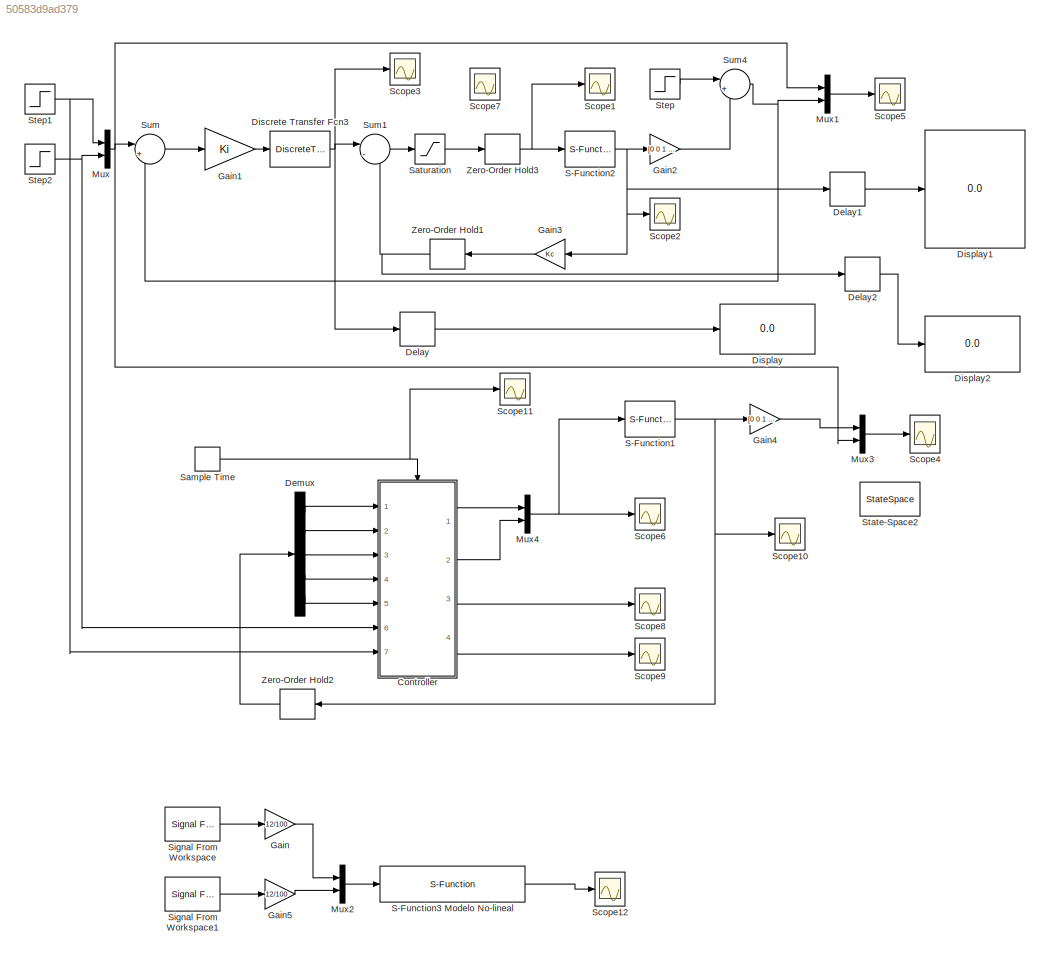
MODEL slx_50583d9ad379
KIND model
CONFIG AbsTol = auto
CONFIG FixedStep = 6e-3
CONFIG MaxStep = auto
CONFIG MinStep = auto
CONFIG RelTol = 1e-3
CONFIG SampleTimeConstraint = Unconstrained
CONFIG Solver = ode45
CONFIG SolverMode = Auto
CONFIG SolverName = ode45
CONFIG StartTime = 0.0
CONFIG StopTime = 30
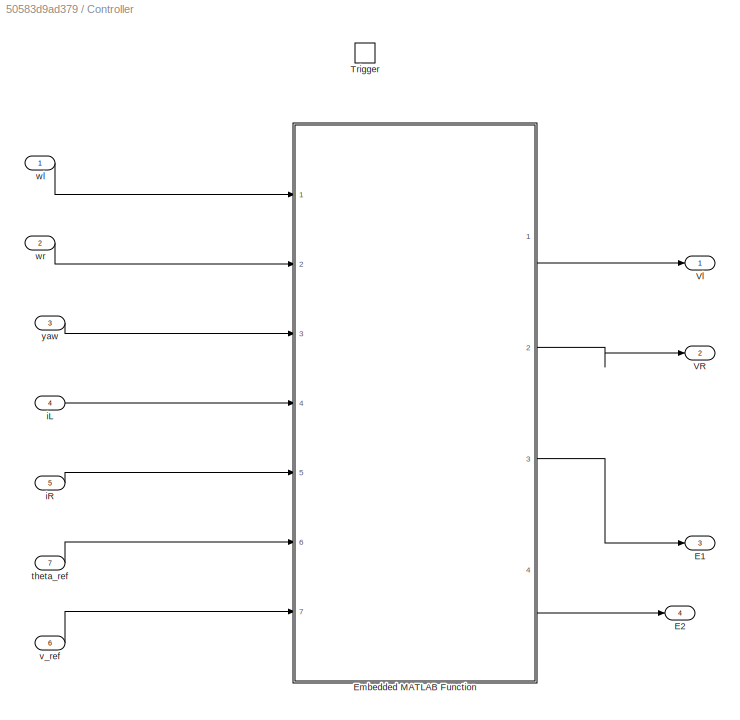
BLOCK [SubSystem] Controller
  Ports = [7, 4, 0, 1]
  RequestExecContextInheritance = off
BLOCK [Outport] Controller/E1
  IconDisplay = Port number
  Port = 3
BLOCK [Outport] Controller/E2
  IconDisplay = Port number
  Port = 4
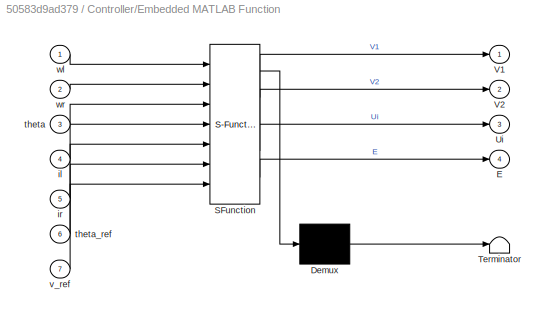
BLOCK [SubSystem] Controller/Embedded MATLAB Function
  ErrorFcn = Stateflow.Translate.translate
  PermitHierarchicalResolution = ExplicitOnly
  Ports = [7, 4]
  RequestExecContextInheritance = off
  SFBlockType = MATLAB Function
  TreatAsAtomicUnit = on
BLOCK [Demux] Controller/Embedded MATLAB Function/ Demux 
  Outputs = 1
  Ports = [1, 1]
BLOCK [S-Function] Controller/Embedded MATLAB Function/ SFunction 
  EnableBusSupport = on
  FunctionName = sf_sfun
  PortCounts = [7 5]
  Ports = [7, 5]
  Tag = Stateflow S-Function lqr_nlin 2
BLOCK [Terminator] Controller/Embedded MATLAB Function/ Terminator 
BLOCK [Outport] Controller/Embedded MATLAB Function/E
  IconDisplay = Port number
  Port = 4
BLOCK [Outport] Controller/Embedded MATLAB Function/Ui
  IconDisplay = Port number
  Port = 3
BLOCK [Outport] Controller/Embedded MATLAB Function/V1
  IconDisplay = Port number
BLOCK [Outport] Controller/Embedded MATLAB Function/V2
  IconDisplay = Port number
  Port = 2
BLOCK [Inport] Controller/Embedded MATLAB Function/il
  IconDisplay = Port number
  Port = 4
BLOCK [Inport] Controller/Embedded MATLAB Function/ir
  IconDisplay = Port number
  Port = 5
BLOCK [Inport] Controller/Embedded MATLAB Function/theta
  IconDisplay = Port number
  Port = 3
BLOCK [Inport] Controller/Embedded MATLAB Function/theta_ref
  IconDisplay = Port number
  Port = 6
BLOCK [Inport] Controller/Embedded MATLAB Function/v_ref
  IconDisplay = Port number
  Port = 7
BLOCK [Inport] Controller/Embedded MATLAB Function/wl
  IconDisplay = Port number
BLOCK [Inport] Controller/Embedded MATLAB Function/wr
  IconDisplay = Port number
  Port = 2
BLOCK [TriggerPort] Controller/Trigger
  Ports = []
  StatesWhenEnabling = held
BLOCK [Outport] Controller/VR
  IconDisplay = Port number
  Port = 2
BLOCK [Outport] Controller/Vl
  IconDisplay = Port number
BLOCK [Inport] Controller/iL
  IconDisplay = Port number
  Port = 4
BLOCK [Inport] Controller/iR
  IconDisplay = Port number
  Port = 5
BLOCK [Inport] Controller/theta_ref
  IconDisplay = Port number
  Port = 7
BLOCK [Inport] Controller/v_ref
  IconDisplay = Port number
  Port = 6
BLOCK [Inport] Controller/wl
  IconDisplay = Port number
BLOCK [Inport] Controller/wr
  IconDisplay = Port number
  Port = 2
BLOCK [Inport] Controller/yaw
  IconDisplay = Port number
  Port = 3
BLOCK [Delay] Delay
  DelayLength = 1
  InputPortMap = u0
  Ports = [1, 1]
  SampleTime = Ts
BLOCK [Delay] Delay1
  DelayLength = 1
  InputPortMap = u0
  Ports = [1, 1]
  SampleTime = Ts
BLOCK [Delay] Delay2
  DelayLength = 1
  InputPortMap = u0
  Ports = [1, 1]
  SampleTime = Ts
BLOCK [Demux] Demux
  DisplayOption = bar
  Outputs = 5
  Ports = [1, 5]
BLOCK [DiscreteTransferFcn] Discrete Transfer Fcn3
  Denominator = [1 -1]
  InputPortMap = u0
  Ports = [1, 1]
  SampleTime = Ts
BLOCK [Display] Display
  Decimation = 1
  Ports = [1]
BLOCK [Display] Display1
  Decimation = 1
  Ports = [1]
BLOCK [Display] Display2
  Decimation = 1
  Ports = [1]
BLOCK [Gain] Gain
  Gain = 12/100
  OutDataTypeStr = Inherit: Inherit via internal rule
  ParamDataTypeStr = Inherit: Inherit via internal rule
  SaturateOnIntegerOverflow = off
BLOCK [Gain] Gain1
  Gain = Ki
  Multiplication = Matrix(K*u) (u vector)
  OutDataTypeStr = Inherit: Inherit via internal rule
  ParamDataTypeStr = Inherit: Inherit via internal rule
  SaturateOnIntegerOverflow = off
BLOCK [Gain] Gain2
  Gain = [0 0 1 0 0;0.5*0.2 0.5*0.2 0 0 0];
  Multiplication = Matrix(K*u) (u vector)
  OutDataTypeStr = Inherit: Inherit via internal rule
  ParamDataTypeStr = Inherit: Inherit via internal rule
  SampleTime = Ts
  SaturateOnIntegerOverflow = off
BLOCK [Gain] Gain3
  Gain = Kc
  Multiplication = Matrix(K*u) (u vector)
  OutDataTypeStr = Inherit: Inherit via internal rule
  ParamDataTypeStr = Inherit: Inherit via internal rule
  SaturateOnIntegerOverflow = off
BLOCK [Gain] Gain4
  Gain = [0 0 1 0 0;0.5*0.2 0.5*0.2 0 0 0];
  Multiplication = Matrix(K*u) (u vector)
  OutDataTypeStr = Inherit: Inherit via internal rule
  ParamDataTypeStr = Inherit: Inherit via internal rule
  SampleTime = Ts
  SaturateOnIntegerOverflow = off
BLOCK [Gain] Gain5
  Gain = 12/100
  OutDataTypeStr = Inherit: Inherit via internal rule
  ParamDataTypeStr = Inherit: Inherit via internal rule
  SaturateOnIntegerOverflow = off
BLOCK [Mux] Mux
  DisplayOption = bar
  Inputs = 2
  Ports = [2, 1]
BLOCK [Mux] Mux1
  DisplayOption = bar
  Inputs = 2
  Ports = [2, 1]
BLOCK [Mux] Mux2
  DisplayOption = bar
  Inputs = 2
  Ports = [2, 1]
BLOCK [Mux] Mux3
  DisplayOption = bar
  Inputs = 2
  Ports = [2, 1]
BLOCK [Mux] Mux4
  DisplayOption = bar
  Inputs = 2
  Ports = [2, 1]
BLOCK [S-Function] S-Function1
  FunctionName = S_Rover_skid_steer
  Ports = [1, 1]
BLOCK [S-Function] S-Function2
  FunctionName = S_Rover_skid_steer
  Ports = [1, 1]
BLOCK [S-Function] S-Function3 Modelo No-lineal
  FunctionName = S_Rover_skid_steer
  Ports = [1, 1]
BLOCK [DiscretePulseGenerator] Sample Time
  Period = Ts
  Ports = [0, 1]
  PulseType = Time based
  PulseWidth = 10
  SampleTime = 1e-3
BLOCK [Saturate] Saturation
  InputPortMap = u0
  LowerLimit = -100
  Ports = [1, 1]
  UpperLimit = 100
BLOCK [Scope] Scope1
  DataFormat = StructureWithTime
  Floating = off
  NumInputPorts = 1
  Ports = [1]
  YMax = 119.24922
  YMin = -73.24295
BLOCK [Scope] Scope10
  DataFormat = StructureWithTime
  Floating = off
  NumInputPorts = 1
  Ports = [1]
  SaveName = ScopeData2
  YMax = 46.62882
  YMin = -57.1366
BLOCK [Scope] Scope11
  DataFormat = StructureWithTime
  Floating = off
  NumInputPorts = 1
  Ports = [1]
  SaveName = ScopeData3
  YMax = 1.00000
  YMin = -1.00000
BLOCK [Scope] Scope12
  DataFormat = StructureWithTime
  Floating = off
  NumInputPorts = 1
  Ports = [1]
  SaveName = ScopeData7
  YMax = 0.7
  YMin = -0.7
BLOCK [Scope] Scope2
  DataFormat = StructureWithTime
  Floating = off
  NumInputPorts = 1
  Ports = [1]
  SaveName = ScopeData1
  YMax = 24.9659
  YMin = -32.95456
BLOCK [Scope] Scope3
  DataFormat = StructureWithTime
  Floating = off
  NumInputPorts = 1
  Ports = [1]
  SaveName = ScopeData2
  YMax = 63.52669
  YMin = -50.1371
BLOCK [Scope] Scope4
  DataFormat = StructureWithTime
  Floating = off
  MaxDataPoints = 500000
  NumInputPorts = 1
  Ports = [1]
  SaveName = ScopeData3
  YMax = 2.25
  YMin = -0.75
BLOCK [Scope] Scope5
  DataFormat = StructureWithTime
  Floating = off
  MaxDataPoints = 500000
  NumInputPorts = 1
  Ports = [1]
  SaveName = ScopeData5
  YMax = 2.25
  YMin = -0.25
BLOCK [Scope] Scope6
  DataFormat = StructureWithTime
  Floating = off
  MaxDataPoints = 500000
  NumInputPorts = 1
  Ports = [1]
  SaveName = ScopeData4
  YMax = 50
  YMin = -70
BLOCK [Scope] Scope7
  DataFormat = StructureWithTime
  Floating = off
  NumInputPorts = 1
  Ports = [1]
  SaveName = ScopeData5
  YMax = 857.62638
  YMin = -874.60938
BLOCK [Scope] Scope8
  DataFormat = StructureWithTime
  Floating = off
  NumInputPorts = 1
  Ports = [1]
  SaveName = ScopeData6
  YMax = 379.73798
  YMin = -461.30149
BLOCK [Scope] Scope9
  DataFormat = StructureWithTime
  Floating = off
  NumInputPorts = 1
  Ports = [1]
  SaveName = ScopeData1
  YMax = 5.27898
  YMin = -2.0067
BLOCK [Reference] Signal From Workspace  REF=dspsrcs4/Signal From
Workspace
  OutputAfterFinalValue = Setting to zero
  Ports = [0, 1]
  SourceBlock = dspsrcs4/Signal From\nWorkspace
  SourceType = Signal From Workspace
  Ts = Ts
  X = U_Iz
  ignoreOrWarnInputAndFrameLengths = off
  nsamps = 1
BLOCK [Reference] Signal From Workspace1  REF=dspsrcs4/Signal From
Workspace
  OutputAfterFinalValue = Setting to zero
  Ports = [0, 1]
  SourceBlock = dspsrcs4/Signal From\nWorkspace
  SourceType = Signal From Workspace
  Ts = Ts
  X = U_Der
  ignoreOrWarnInputAndFrameLengths = off
  nsamps = 1
BLOCK [StateSpace] State-Space2
  A = A
  B = B
  C = eye(5)
  ContinuousStateAttributes = 'position'
  D = zeros(5,2)
  Ports = [1, 1]
  X0 = 0
BLOCK [Step] Step
  After = 0
  SampleTime = 0
  Time = 3
BLOCK [Step] Step1
  After = pi/2
  SampleTime = 0
  Time = 6
BLOCK [Step] Step2
  After = 0
  Before = 1
  SampleTime = 0
  Time = 5
BLOCK [Sum] Sum
  IconShape = round
  InputSameDT = off
  Inputs = |+-
  OutDataTypeStr = Inherit: Inherit via internal rule
  Ports = [2, 1]
  SaturateOnIntegerOverflow = off
BLOCK [Sum] Sum1
  IconShape = round
  InputSameDT = off
  Inputs = |--
  OutDataTypeStr = Inherit: Inherit via internal rule
  Ports = [2, 1]
  SaturateOnIntegerOverflow = off
BLOCK [Sum] Sum4
  IconShape = round
  InputSameDT = off
  Inputs = |++
  OutDataTypeStr = Inherit: Inherit via internal rule
  Ports = [2, 1]
  SaturateOnIntegerOverflow = off
BLOCK [ZeroOrderHold] Zero-Order Hold1
  SampleTime = Ts
BLOCK [ZeroOrderHold] Zero-Order Hold2
  SampleTime = Ts
BLOCK [ZeroOrderHold] Zero-Order Hold3
  SampleTime = Ts
LINE Controller/Embedded MATLAB Function:1 -> Controller/Vl:1
LINE Controller/Embedded MATLAB Function:2 -> Controller/VR:1
LINE Controller/Embedded MATLAB Function:3 -> Controller/E1:1
LINE Controller/Embedded MATLAB Function:4 -> Controller/E2:1
LINE Controller/iL:1 -> Controller/Embedded MATLAB Function:4
LINE Controller/iR:1 -> Controller/Embedded MATLAB Function:5
LINE Controller/theta_ref:1 -> Controller/Embedded MATLAB Function:6
LINE Controller/v_ref:1 -> Controller/Embedded MATLAB Function:7
LINE Controller/wl:1 -> Controller/Embedded MATLAB Function:1
LINE Controller/wr:1 -> Controller/Embedded MATLAB Function:2
LINE Controller/yaw:1 -> Controller/Embedded MATLAB Function:3
LINE Controller:1 -> Mux4:1
LINE Controller:2 -> Mux4:2
LINE Controller:3 -> Scope8:1
LINE Controller:4 -> Scope9:1
LINE Delay1:1 -> Display1:1
LINE Delay2:1 -> Display2:1
LINE Delay:1 -> Display:1
LINE Demux:1 -> Controller:1
LINE Demux:2 -> Controller:2
LINE Demux:3 -> Controller:3
LINE Demux:4 -> Controller:4
LINE Demux:5 -> Controller:5
NET Discrete Transfer Fcn3:1 -> Delay:1, Scope3:1, Sum1:1
LINE Gain1:1 -> Discrete Transfer Fcn3:1
LINE Gain2:1 -> Sum4:2
LINE Gain3:1 -> Zero-Order Hold1:1
LINE Gain4:1 -> Mux3:1
LINE Gain5:1 -> Mux2:2
LINE Gain:1 -> Mux2:1
LINE Mux1:1 -> Scope5:1
LINE Mux2:1 -> S-Function3 Modelo No-lineal:1
LINE Mux3:1 -> Scope4:1
NET Mux4:1 -> S-Function1:1, Scope6:1
NET Mux:1 -> Mux1:1, Mux3:2, Sum:1
NET S-Function1:1 -> Gain4:1, Scope10:1, Zero-Order Hold2:1
NET S-Function2:1 -> Delay1:1, Gain2:1, Gain3:1, Scope2:1
LINE S-Function3 Modelo No-lineal:1 -> Scope12:1
NET Sample Time:1 -> Controller:trigger, Scope11:1
LINE Saturation:1 -> Zero-Order Hold3:1
LINE Signal From Workspace1:1 -> Gain5:1
LINE Signal From Workspace:1 -> Gain:1
NET Step1:1 -> Controller:7, Mux:1
NET Step2:1 -> Controller:6, Mux:2
LINE Step:1 -> Sum4:1
LINE Sum1:1 -> Saturation:1
NET Sum4:1 -> Mux1:2, Sum:2
LINE Sum:1 -> Gain1:1
NET Zero-Order Hold1:1 -> Delay2:1, Sum1:2
LINE Zero-Order Hold2:1 -> Demux:1
NET Zero-Order Hold3:1 -> S-Function2:1, Scope1:1
note: NET lines group one-source signal fan-out (src -> all destinations, sorted); 1:1 wires keep LINE
CHART Controller/Embedded
MATLAB Function states=1 transitions=1
  STATE_LABEL 'eML_blk_kernel()'
  STATE_LABEL 'SCRIPT:\nfunction [V1,V2,Ui,E]  = fcn(wl,wr,theta,il,ir,theta_ref,v_ref)\n\n persistent Ui_1 E_1 Cd Ka;\n% \n if isempty(Ui_1);\n     Ui_1=[0;0];   \n end;\n \n if isempty(E_1); \n     E_1=[0;0];   \n end;\n \n \n  if isempty(Cd);\n     Cd=zeros(2,5);   \n end;\n \n  \n  if isempty(Ka);\n     Ka=zeros(2,7);   \n end;\n \n Ki=[5.4795   -6.1992;\n   -4.9999   -4.8503];\n\n%     13.0129212743297860 -3.173079275057106;\n%    -1...<+2301ch>'
